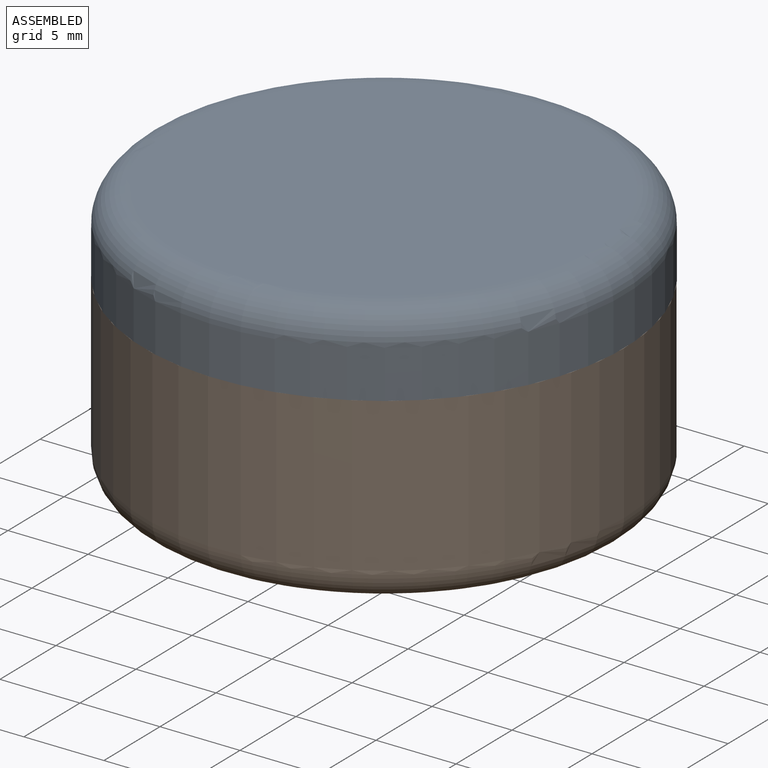
[diagram: assembled view]
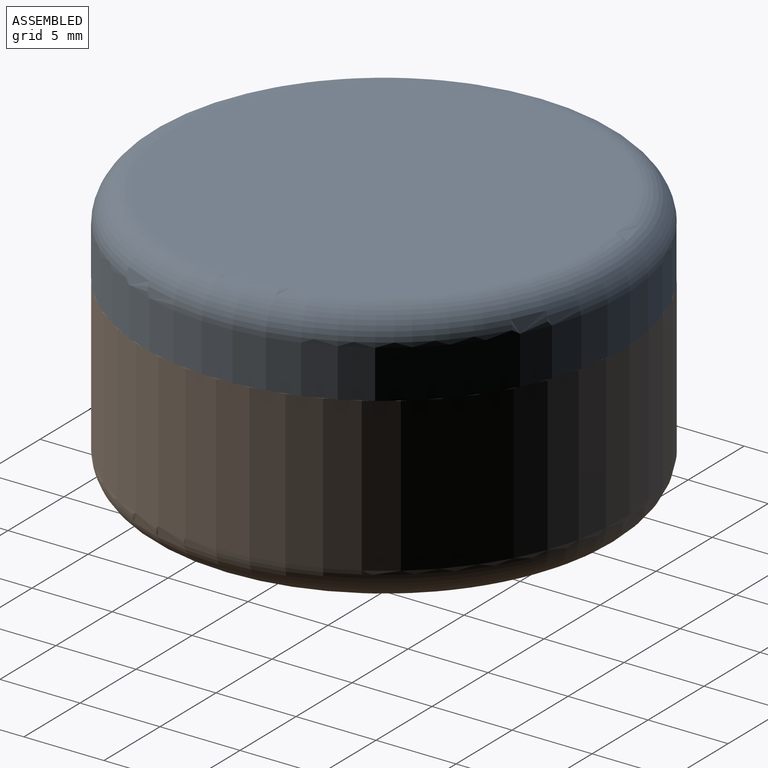
[diagram: assembled view, second angle]
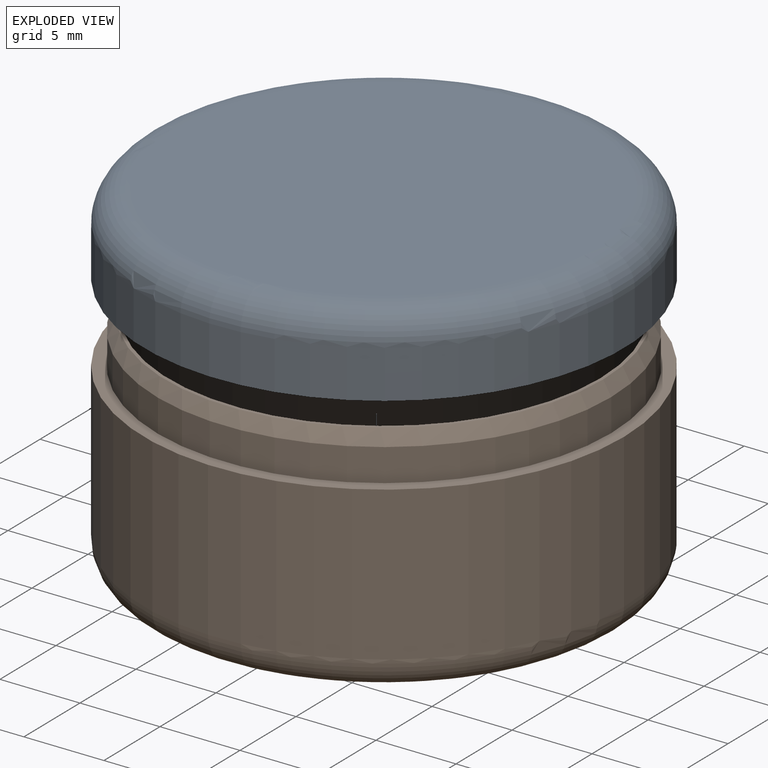
[diagram: exploded view]
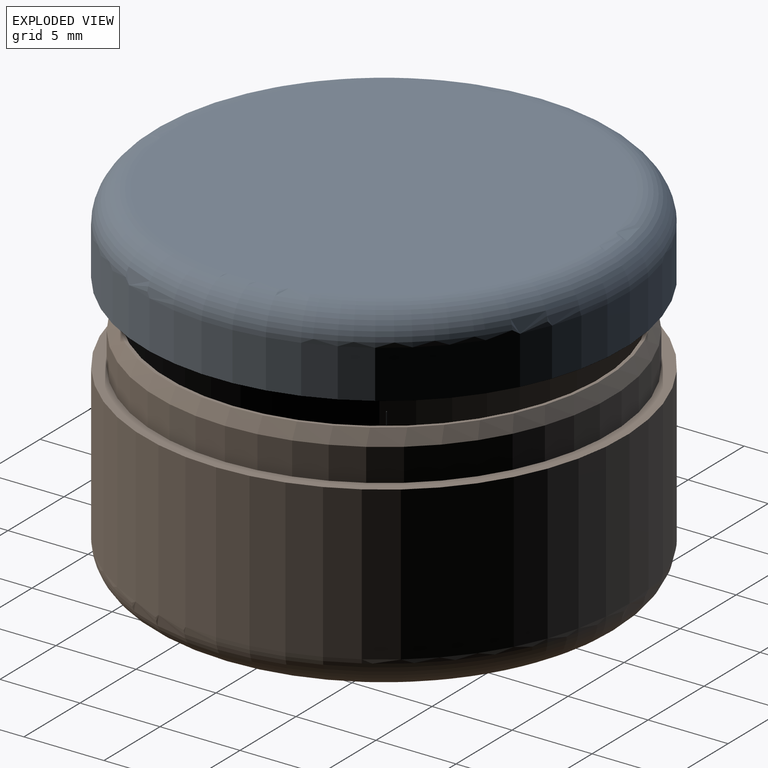
[diagram: exploded view, second angle]
ASSEMBLY  parts=2 mates=2
PART A: 7 faces, bbox 32.5x32.5x5 mm
  f0: cylinder r=15mm len=30mm, axis (0,0,-1), area 282.7mm2, adj f2,f6
  f1: plane 26x26mm, normal (0,0,1), area 530.9mm2, adj f6
  f2: plane 30x30mm, normal (0,0,-1), area 59.9mm2, adj f0,f3
  f3: cylinder r=14.35mm len=28.7mm, axis (0,0,-1), area 180.3mm2, adj f2,f5
  f4: plane 24.7x24.7mm, normal (0,0,-1), area 479.2mm2, adj f5
  f5: torus R=12.35mm, axis (0,0,-1), area 268.9mm2, adj f3,f4
  f6: torus R=13mm, axis (0,0,1), area 281.7mm2, adj f0,f1
PART B: 10 faces, bbox 32.5x32.5x14.5 mm
  f0: plane 27.4x27.4mm, normal (0,0,1), area 17.1mm2, adj f1,f9
  f1: cylinder r=13.5mm len=27mm, axis (0,0,-1), area 1060.3mm2, adj f0,f7
  f2: plane 26x26mm, normal (0,0,1), area 530.9mm2, adj f7
  f3: cylinder r=14.2mm len=28.4mm, axis (0,0,1), area 181.5mm2, adj f4,f9
  f4: plane 30x30mm, normal (0,0,1), area 73.4mm2, adj f3,f6
  f5: plane 26x26mm, normal (0,0,-1), area 530.9mm2, adj f8
  f6: cylinder r=15mm len=30mm, axis (0,0,-1), area 904.8mm2, adj f4,f8
  f7: torus R=13mm, axis (0,0,1), area 65.7mm2, adj f1,f2
  f8: torus R=13mm, axis (0,0,1), area 281.7mm2, adj f5,f6
  f9: cone r=13.7mm half-angle=30deg, axis (0,0,-1), area 87.7mm2, adj f0,f3
PLACE A rot(axis=(0,0,-1),99deg) t=(0,0,11.6)mm
PLACE B at identity fixed
MATE cylindrical A.f0 <-> B.f3  axis (0,0,-1) through (0,0,11.6)mm
MATE planar B.f1 <-> A.f0  axis (0,0,1) through (0,0,11.6)mm
